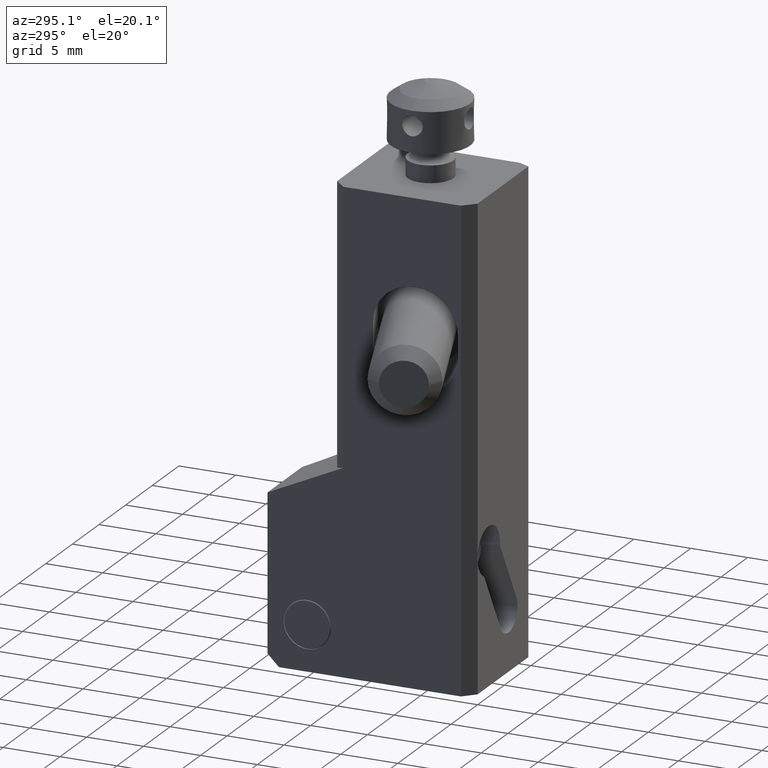
[diagram: clean part render]
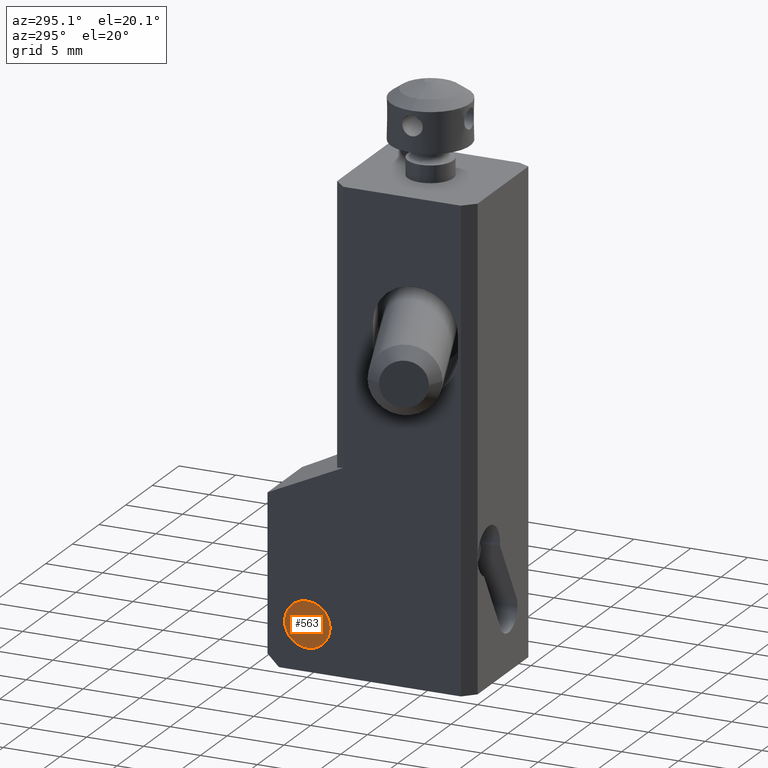
[diagram: same view with one face highlighted and labeled with its STEP entity id]
A machine part, auxiliary view. The second image highlights one B-rep face of the part: STEP entity #563.
In plain terms, the highlighted planar face has unit normal (1, 0, 0).
Its self-contained STEP definition (entity closure, byte-faithful):
#350=CIRCLE('',#4597,2.);
#351=CIRCLE('',#4598,2.);
#352=CIRCLE('',#4599,2.);
#563=ADVANCED_FACE('',(#886),#689,.F.);
#689=PLANE('',#4600);
#886=FACE_OUTER_BOUND('',#1111,.T.);
#1111=EDGE_LOOP('',(#2249,#2250,#2251));
#2249=ORIENTED_EDGE('',*,*,#3304,.F.);
#2250=ORIENTED_EDGE('',*,*,#3305,.F.);
#2251=ORIENTED_EDGE('',*,*,#3306,.F.);
#2738=VERTEX_POINT('',#7589);
#2739=VERTEX_POINT('',#7590);
#2740=VERTEX_POINT('',#7592);
#3304=EDGE_CURVE('',#2738,#2739,#350,.T.);
#3305=EDGE_CURVE('',#2740,#2738,#351,.T.);
#3306=EDGE_CURVE('',#2739,#2740,#352,.T.);
#4597=AXIS2_PLACEMENT_3D('',#7588,#5741,#5742);
#4598=AXIS2_PLACEMENT_3D('',#7591,#5743,#5744);
#4599=AXIS2_PLACEMENT_3D('',#7593,#5745,#5746);
#4600=AXIS2_PLACEMENT_3D('',#7594,#5747,#5748);
#5741=DIRECTION('',(1.,0.,0.));
#5742=DIRECTION('',(0.,1.,0.));
#5743=DIRECTION('',(1.,0.,0.));
#5744=DIRECTION('',(0.,0.,-1.));
#5745=DIRECTION('',(1.,0.,0.));
#5746=DIRECTION('',(0.,-1.,0.));
#5747=DIRECTION('',(1.,0.,0.));
#5748=DIRECTION('',(0.,1.,0.));
#7588=CARTESIAN_POINT('',(-11.,14.5,-37.60049189996));
#7589=CARTESIAN_POINT('',(-11.,16.5,-37.60049189996));
#7590=CARTESIAN_POINT('',(-11.,12.5,-37.60049189996));
#7591=CARTESIAN_POINT('',(-11.,14.5,-37.60049189996));
#7592=CARTESIAN_POINT('',(-11.,14.5,-39.60049189996));
#7593=CARTESIAN_POINT('',(-11.,14.5,-37.60049189996));
#7594=CARTESIAN_POINT('',(-11.,14.5,-37.59953832472));